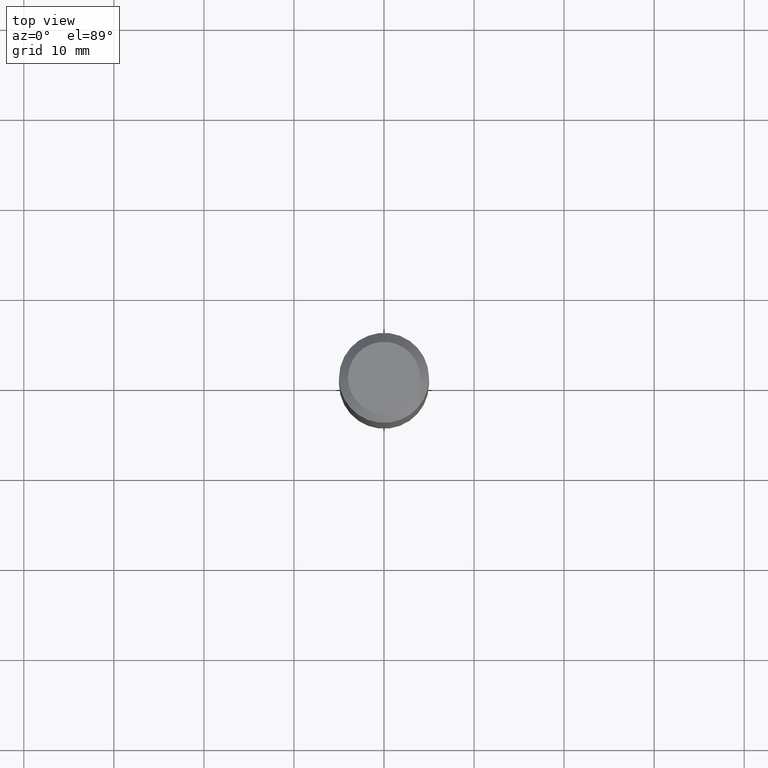
[diagram: clean part render]
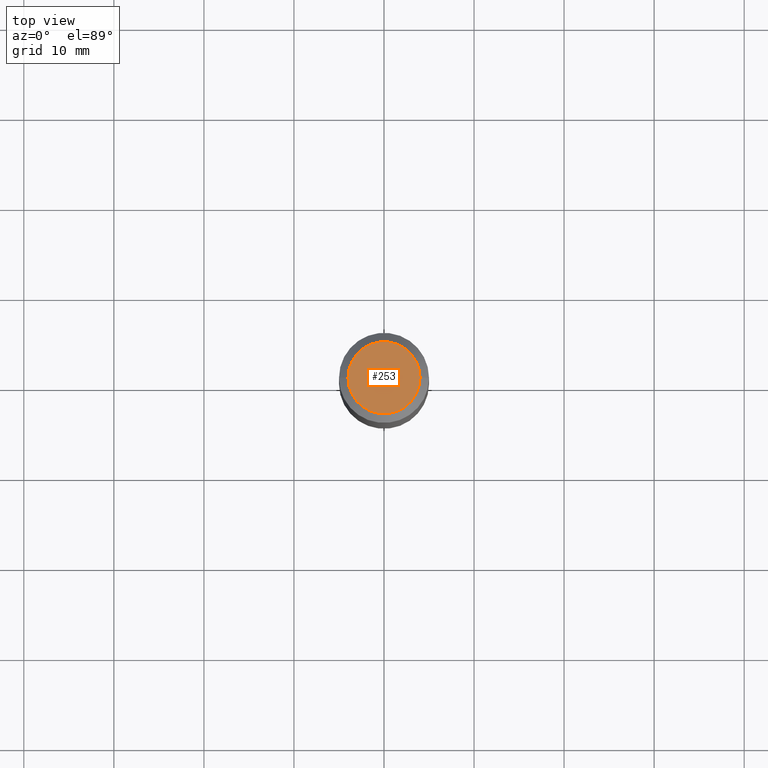
[diagram: same view with one face highlighted and labeled with its STEP entity id]
A machine part, top view. The second image highlights one B-rep face of the part: STEP entity #253.
In plain terms, the highlighted planar face has unit normal (0, -0, -1).
Its self-contained STEP definition (entity closure, byte-faithful):
#9 = DIRECTION ( 'NONE',  ( -2.445468806185136597E-29, 3.491481338843145583E-15, 1.000000000000000000 ) ) ;
#13 = PLANE ( 'NONE',  #195 ) ;
#15 = DIRECTION ( 'NONE',  ( 1.000000000000000000, -6.982962677686265922E-15, 4.876223630392693006E-29 ) ) ;
#52 = EDGE_CURVE ( 'NONE', #201, #287, #103, .T. ) ;
#53 = DIRECTION ( 'NONE',  ( 2.438088387897960049E-29, -3.491481338843145188E-15, -1.000000000000000000 ) ) ;
#75 = DIRECTION ( 'NONE',  ( -2.445468806185136597E-29, 3.491481338843145583E-15, 1.000000000000000000 ) ) ;
#103 = CIRCLE ( 'NONE', #181, 0.1574800000000000089 ) ;
#131 = FACE_OUTER_BOUND ( 'NONE', #426, .T. ) ;
#168 = CARTESIAN_POINT ( 'NONE',  ( 0.1574800000000000089, -1.284169937930321189E-15, 3.855188123724205385E-18 ) ) ;
#179 = CARTESIAN_POINT ( 'NONE',  ( -0.1574800000000000089, 1.168406772637159618E-15, 3.855188123707939751E-18 ) ) ;
#181 = AXIS2_PLACEMENT_3D ( 'NONE', #361, #75, #241 ) ;
#195 = AXIS2_PLACEMENT_3D ( 'NONE', #377, #53, #412 ) ;
#201 = VERTEX_POINT ( 'NONE', #168 ) ;
#241 = DIRECTION ( 'NONE',  ( 1.000000000000000000, -6.982962677686265922E-15, 4.876223630392693006E-29 ) ) ;
#253 = ADVANCED_FACE ( 'NONE', ( #131 ), #13, .F. ) ;
#276 = EDGE_CURVE ( 'NONE', #287, #201, #284, .T. ) ;
#277 = AXIS2_PLACEMENT_3D ( 'NONE', #291, #9, #15 ) ;
#284 = CIRCLE ( 'NONE', #277, 0.1574800000000000089 ) ;
#287 = VERTEX_POINT ( 'NONE', #179 ) ;
#291 = CARTESIAN_POINT ( 'NONE',  ( -9.427742298522567634E-47, 1.346031739168368355E-32, 3.855188123715870730E-18 ) ) ;
#361 = CARTESIAN_POINT ( 'NONE',  ( -9.427742298522567634E-47, 1.346031739168368355E-32, 3.855188123715870730E-18 ) ) ;
#368 = ORIENTED_EDGE ( 'NONE', *, *, #52, .T. ) ;
#377 = CARTESIAN_POINT ( 'NONE',  ( -4.713871149261283817E-47, 6.730158695841841775E-33, 1.927594061857935365E-18 ) ) ;
#412 = DIRECTION ( 'NONE',  ( -1.000000000000000000, 6.982962677686265922E-15, -4.876176775795935793E-29 ) ) ;
#426 = EDGE_LOOP ( 'NONE', ( #467, #368 ) ) ;
#467 = ORIENTED_EDGE ( 'NONE', *, *, #276, .T. ) ;